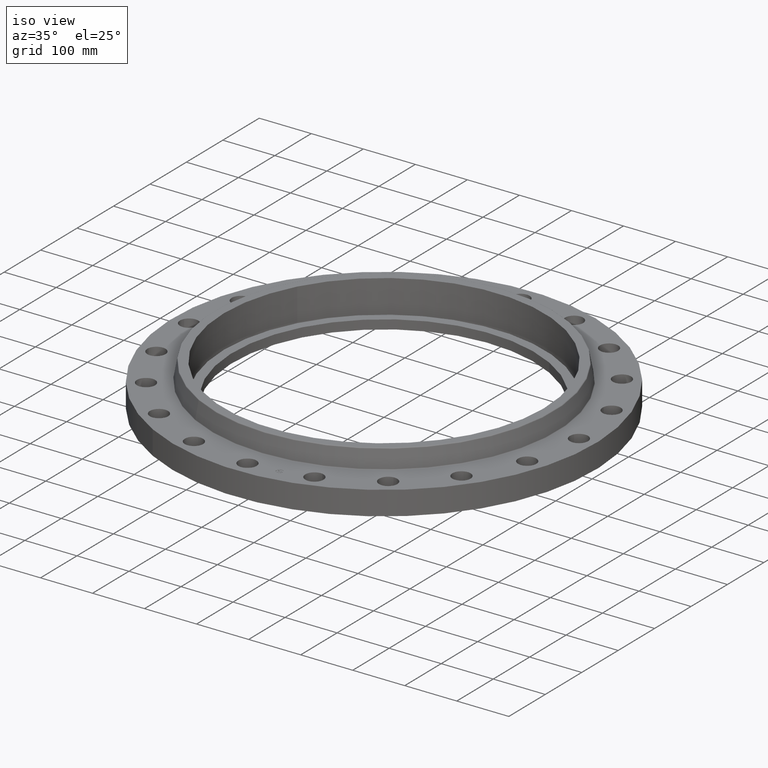
[diagram: clean part render]
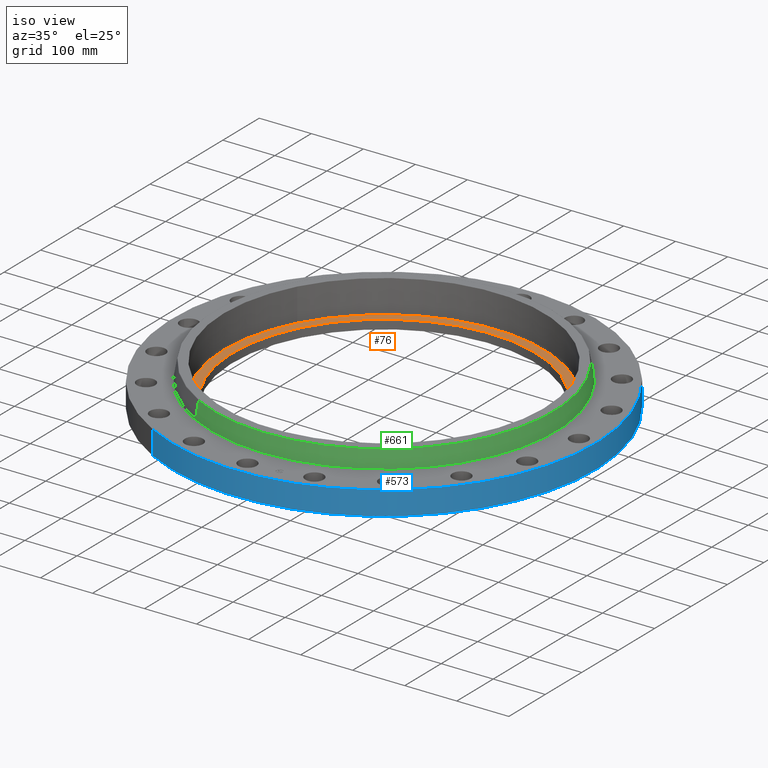
[diagram: same view with three faces highlighted in distinct colors, each labeled with its STEP entity id]
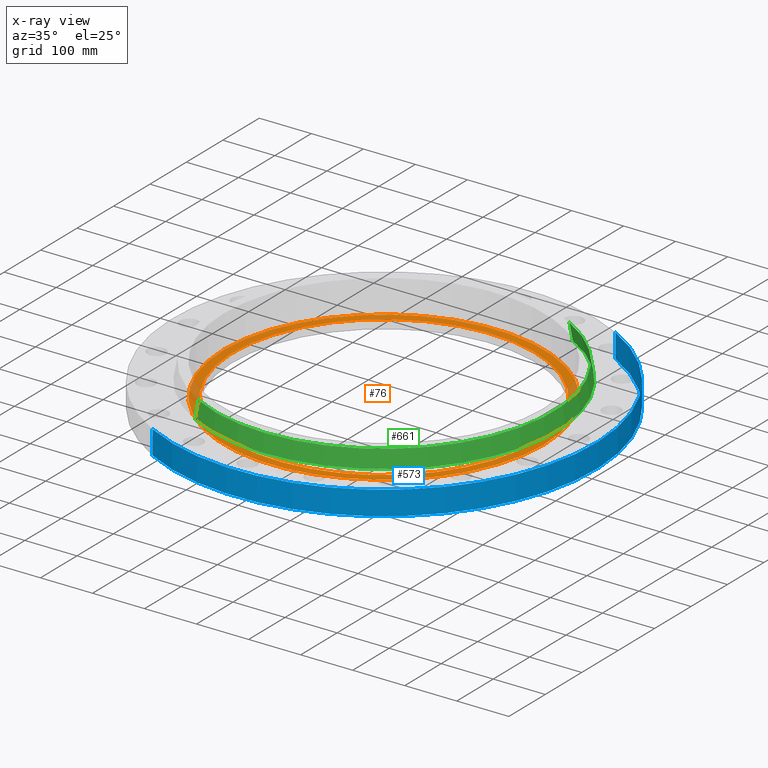
[diagram: x-ray of the same camera — body ghosted, the three highlighted faces saturated]
A machine part, iso view with three faces highlighted in distinct colors.
The next image is the same camera in x-ray (body ghosted, the three faces saturated) — at least one of them is partly hidden behind the body in this view.
Their STEP definitions:

[orange] entity #76 — the highlighted planar face has unit normal (0, 0, -1).
#38=AXIS2_PLACEMENT_3D('Plane Axis2P3D',#35,#36,#37) ;
#42=AXIS2_PLACEMENT_3D('Circle Axis2P3D',#40,#41,$) ;
#51=AXIS2_PLACEMENT_3D('Circle Axis2P3D',#49,#50,$) ;
#60=AXIS2_PLACEMENT_3D('Circle Axis2P3D',#58,#59,$) ;
#69=AXIS2_PLACEMENT_3D('Circle Axis2P3D',#67,#68,$) ;
#35=CARTESIAN_POINT('Axis2P3D Location',(0.,-6.99353086378E-017,0.690000000003)) ;
#40=CARTESIAN_POINT('Axis2P3D Location',(0.,-6.99353086378E-017,0.690000000003)) ;
#44=CARTESIAN_POINT('Vertex',(-10.640688563,5.8130346556,0.690000000003)) ;
#46=CARTESIAN_POINT('Vertex',(10.640688563,-5.8130346556,0.690000000003)) ;
#49=CARTESIAN_POINT('Axis2P3D Location',(0.,-6.99353086378E-017,0.690000000003)) ;
#58=CARTESIAN_POINT('Axis2P3D Location',(-2.23792987641E-015,-9.09159012291E-016,0.690000000003)) ;
#62=CARTESIAN_POINT('Vertex',(-5.48366931058,-10.0377893429,0.690000000003)) ;
#64=CARTESIAN_POINT('Vertex',(5.48366931058,10.0377893429,0.690000000003)) ;
#67=CARTESIAN_POINT('Axis2P3D Location',(0.,-6.99353086378E-017,0.690000000003)) ;
#36=DIRECTION('Axis2P3D Direction',(0.,0.,-0.0393700787402)) ;
#37=DIRECTION('Axis2P3D XDirection',(0.0393700787402,0.,0.)) ;
#41=DIRECTION('Axis2P3D Direction',(0.,0.,-0.0393700787402)) ;
#50=DIRECTION('Axis2P3D Direction',(0.,0.,-0.0393700787402)) ;
#59=DIRECTION('Axis2P3D Direction',(0.,0.,-0.0393700787402)) ;
#68=DIRECTION('Axis2P3D Direction',(0.,0.,-0.0393700787402)) ;
#55=ORIENTED_EDGE('',*,*,#48,.F.) ;
#56=ORIENTED_EDGE('',*,*,#53,.F.) ;
#73=ORIENTED_EDGE('',*,*,#66,.T.) ;
#74=ORIENTED_EDGE('',*,*,#71,.T.) ;
#75=FACE_BOUND('',#72,.T.) ;
#76=ADVANCED_FACE('PartBody',(#57,#75),#39,.F.) ;
#43=CIRCLE('generated circle',#42,12.125) ;
#52=CIRCLE('generated circle',#51,12.125) ;
#61=CIRCLE('generated circle',#60,11.438) ;
#70=CIRCLE('generated circle',#69,11.438) ;
#48=EDGE_CURVE('',#45,#47,#43,.T.) ;
#53=EDGE_CURVE('',#47,#45,#52,.T.) ;
#66=EDGE_CURVE('',#63,#65,#61,.T.) ;
#71=EDGE_CURVE('',#65,#63,#70,.T.) ;
#54=EDGE_LOOP('',(#55,#56)) ;
#72=EDGE_LOOP('',(#73,#74)) ;
#57=FACE_OUTER_BOUND('',#54,.T.) ;
#39=PLANE('',#38) ;
#45=VERTEX_POINT('',#44) ;
#47=VERTEX_POINT('',#46) ;
#63=VERTEX_POINT('',#62) ;
#65=VERTEX_POINT('',#64) ;

[blue] entity #573 — the highlighted cylindrical surface (partial cylindrical patch) has radius 406.4 mm, axis along (0, 0, -1).
#159=AXIS2_PLACEMENT_3D('Circle Axis2P3D',#157,#158,$) ;
#534=AXIS2_PLACEMENT_3D('Cylinder Axis2P3D',#531,#532,#533) ;
#564=AXIS2_PLACEMENT_3D('Circle Axis2P3D',#562,#563,$) ;
#152=CARTESIAN_POINT('Vertex',(-7.6708086177,-14.0413209903,1.95818864186E-015)) ;
#154=CARTESIAN_POINT('Vertex',(7.6708086177,14.0413209903,1.95818864186E-015)) ;
#157=CARTESIAN_POINT('Axis2P3D Location',(0.,0.,0.)) ;
#531=CARTESIAN_POINT('Axis2P3D Location',(0.,0.,1.59500000001)) ;
#536=CARTESIAN_POINT('Line Origine',(-7.6708086177,-14.0413209903,0.905000000004)) ;
#540=CARTESIAN_POINT('Vertex',(-7.6708086177,-14.0413209903,1.81000000001)) ;
#547=CARTESIAN_POINT('Vertex',(7.6708086177,14.0413209903,1.81000000001)) ;
#550=CARTESIAN_POINT('Line Origine',(7.6708086177,14.0413209903,0.905000000004)) ;
#562=CARTESIAN_POINT('Axis2P3D Location',(0.,0.,1.81000000001)) ;
#158=DIRECTION('Axis2P3D Direction',(0.,0.,-0.0393700787402)) ;
#532=DIRECTION('Axis2P3D Direction',(0.,0.,-0.0393700787402)) ;
#533=DIRECTION('Axis2P3D XDirection',(0.0188750212049,0.0345504945626,0.)) ;
#537=DIRECTION('Vector Direction',(0.,0.,-0.0393700787402)) ;
#551=DIRECTION('Vector Direction',(0.,0.,-0.0393700787402)) ;
#563=DIRECTION('Axis2P3D Direction',(0.,0.,-0.0393700787402)) ;
#538=VECTOR('Line Direction',#537,0.0393700787402) ;
#552=VECTOR('Line Direction',#551,0.0393700787402) ;
#568=ORIENTED_EDGE('',*,*,#161,.F.) ;
#569=ORIENTED_EDGE('',*,*,#554,.T.) ;
#570=ORIENTED_EDGE('',*,*,#566,.T.) ;
#571=ORIENTED_EDGE('',*,*,#542,.F.) ;
#573=ADVANCED_FACE('PartBody',(#572),#535,.T.) ;
#160=CIRCLE('generated circle',#159,16.0000000001) ;
#565=CIRCLE('generated circle',#564,16.0000000001) ;
#535=CYLINDRICAL_SURFACE('generated cylinder',#534,16.0000000001) ;
#161=EDGE_CURVE('',#155,#153,#160,.T.) ;
#542=EDGE_CURVE('',#153,#541,#539,.F.) ;
#554=EDGE_CURVE('',#155,#548,#553,.F.) ;
#566=EDGE_CURVE('',#548,#541,#565,.T.) ;
#567=EDGE_LOOP('',(#568,#569,#570,#571)) ;
#572=FACE_OUTER_BOUND('',#567,.T.) ;
#539=LINE('Line',#536,#538) ;
#553=LINE('Line',#550,#552) ;
#153=VERTEX_POINT('',#152) ;
#155=VERTEX_POINT('',#154) ;
#541=VERTEX_POINT('',#540) ;
#548=VERTEX_POINT('',#547) ;

[green] entity #661 — the highlighted conical surface has half-angle 10 deg.
#597=AXIS2_PLACEMENT_3D('Circle Axis2P3D',#595,#596,$) ;
#634=AXIS2_PLACEMENT_3D('Cone Axis2P3D',#631,#632,#633) ;
#645=AXIS2_PLACEMENT_3D('Circle Axis2P3D',#643,#644,$) ;
#592=CARTESIAN_POINT('Vertex',(6.25710616251,11.4535560039,1.85958110935)) ;
#595=CARTESIAN_POINT('Axis2P3D Location',(0.,0.,1.85958110935)) ;
#599=CARTESIAN_POINT('Vertex',(-6.25710616251,-11.4535560039,1.85958110935)) ;
#631=CARTESIAN_POINT('Axis2P3D Location',(0.,0.,3.14041889067)) ;
#636=CARTESIAN_POINT('Line Origine',(6.20296793039,11.3544566347,2.50000000001)) ;
#640=CARTESIAN_POINT('Vertex',(6.14882969826,11.2553572656,3.14041889067)) ;
#643=CARTESIAN_POINT('Axis2P3D Location',(0.,0.,3.14041889067)) ;
#647=CARTESIAN_POINT('Vertex',(-6.14882969826,-11.2553572656,3.14041889067)) ;
#650=CARTESIAN_POINT('Line Origine',(-6.20296793039,-11.3544566347,2.50000000001)) ;
#596=DIRECTION('Axis2P3D Direction',(0.,0.,-0.0393700787402)) ;
#632=DIRECTION('Axis2P3D Direction',(0.,0.,-0.0393700787402)) ;
#633=DIRECTION('Axis2P3D XDirection',(-0.0188750212049,-0.0345504945626,0.)) ;
#637=DIRECTION('Vector Direction',(0.00327761303565,0.00599963041829,-0.03877195878)) ;
#644=DIRECTION('Axis2P3D Direction',(0.,0.,-0.0393700787402)) ;
#651=DIRECTION('Vector Direction',(-0.00327761303565,-0.00599963041829,-0.03877195878)) ;
#638=VECTOR('Line Direction',#637,0.0393700787402) ;
#652=VECTOR('Line Direction',#651,0.0393700787402) ;
#656=ORIENTED_EDGE('',*,*,#601,.F.) ;
#657=ORIENTED_EDGE('',*,*,#642,.T.) ;
#658=ORIENTED_EDGE('',*,*,#649,.T.) ;
#659=ORIENTED_EDGE('',*,*,#654,.F.) ;
#661=ADVANCED_FACE('PartBody',(#660),#635,.T.) ;
#598=CIRCLE('generated circle',#597,13.0512575127) ;
#646=CIRCLE('generated circle',#645,12.825411254) ;
#635=CONICAL_SURFACE('Cone',#634,12.825411254,0.174532925199) ;
#601=EDGE_CURVE('',#593,#600,#598,.T.) ;
#642=EDGE_CURVE('',#593,#641,#639,.F.) ;
#649=EDGE_CURVE('',#641,#648,#646,.T.) ;
#654=EDGE_CURVE('',#600,#648,#653,.F.) ;
#655=EDGE_LOOP('',(#656,#657,#658,#659)) ;
#660=FACE_OUTER_BOUND('',#655,.T.) ;
#639=LINE('Line',#636,#638) ;
#653=LINE('Line',#650,#652) ;
#593=VERTEX_POINT('',#592) ;
#600=VERTEX_POINT('',#599) ;
#641=VERTEX_POINT('',#640) ;
#648=VERTEX_POINT('',#647) ;